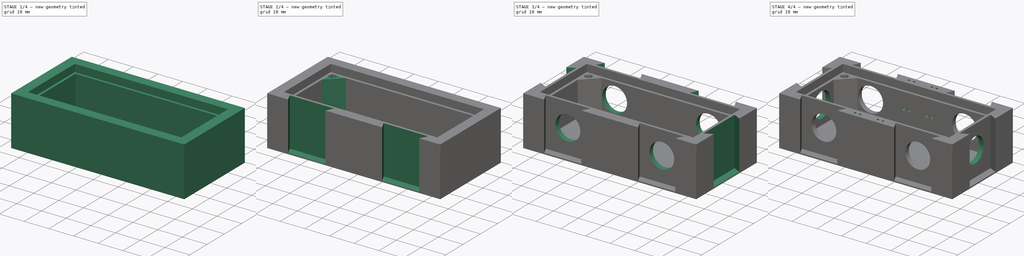
[diagram: build sequence overview — one tinted view per stage of 4, left to right]
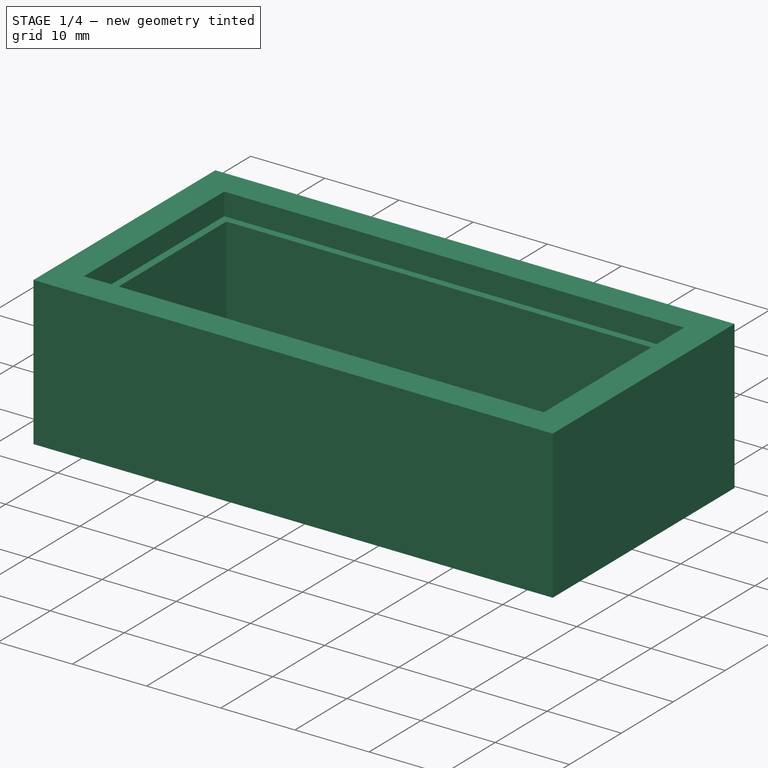
[diagram: stage 1 of 4 — iso view after this stage's code; geometry added in this stage tinted green]
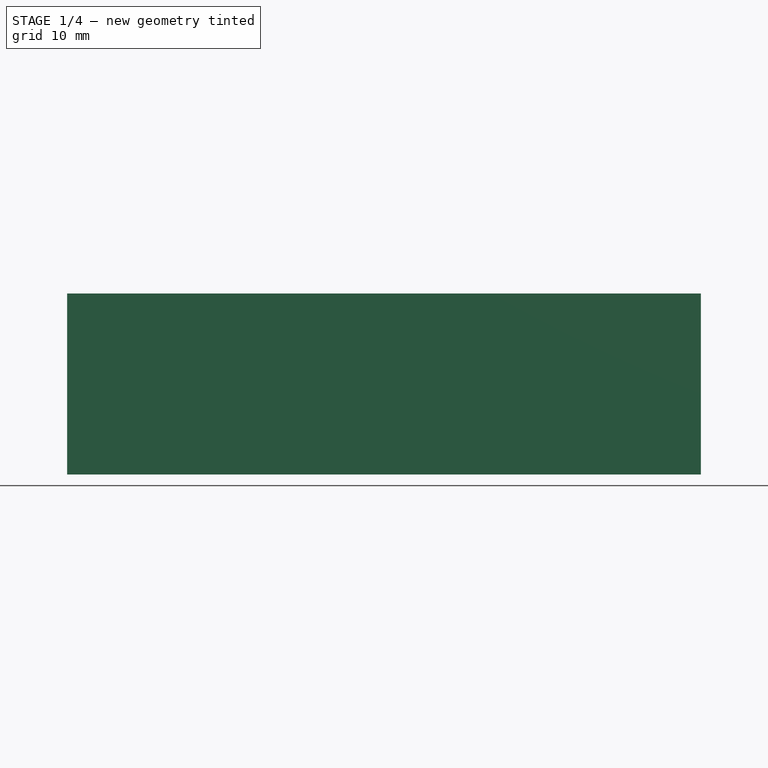
[diagram: stage 1 of 4 — front view after this stage's code; geometry added in this stage tinted green]
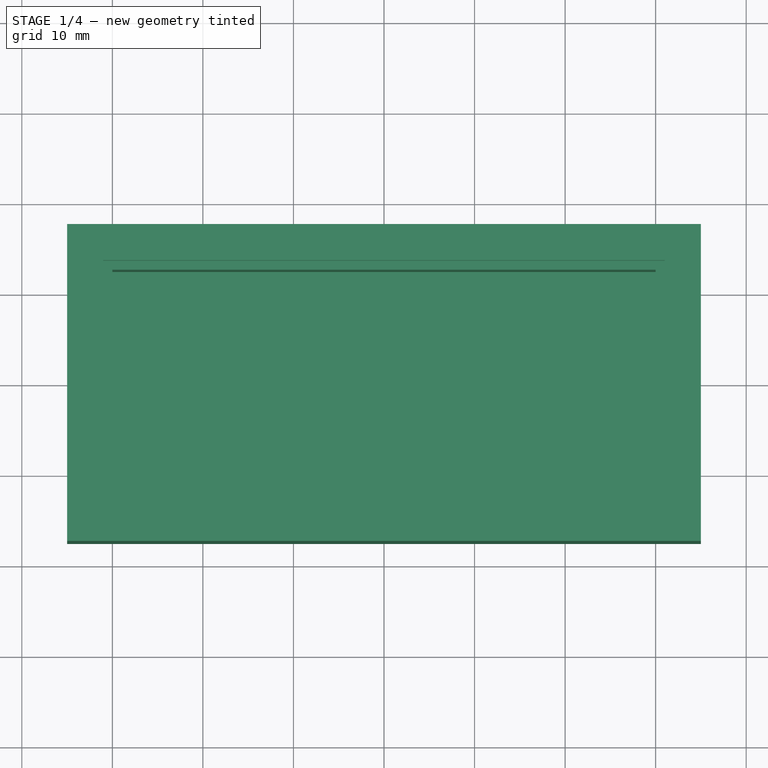
[diagram: stage 1 of 4 — top view after this stage's code; geometry added in this stage tinted green]
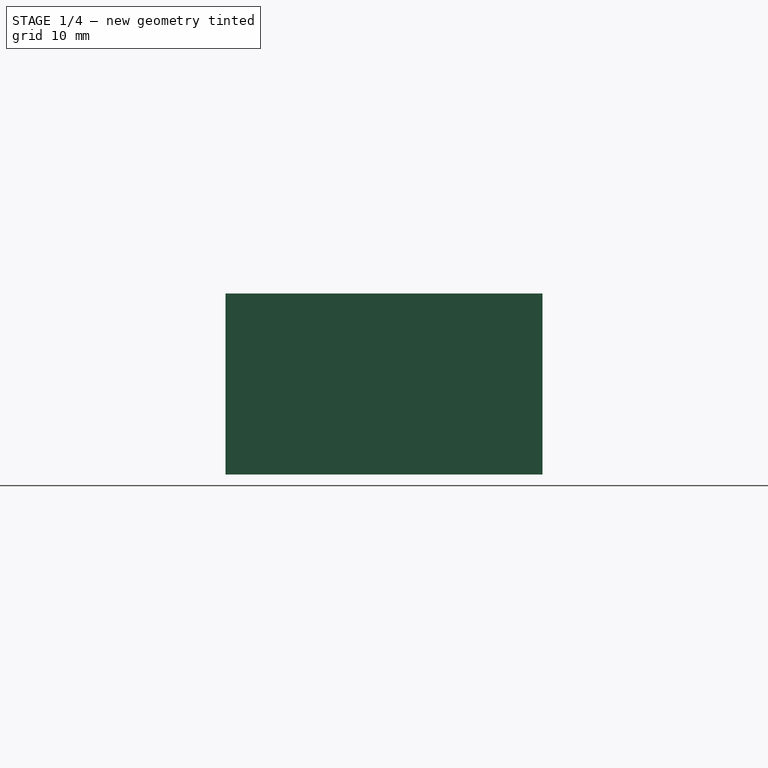
[diagram: stage 1 of 4 — right view after this stage's code; geometry added in this stage tinted green]
FCSTD DOCUMENT  (FreeCAD 0.18R4 (GitTag))
Label: 6xGateway
License: All rights reserved
LicenseURL: http://en.wikipedia.org/wiki/All_rights_reserved
objects: Sketcher::SketchObject×10, PartDesign::Pocket×7, PartDesign::Mirrored×3, PartDesign::Pad×2, PartDesign::Groove×1, PartDesign::Body×1
note: 34 computed .brp shape members not serialized (recipe doc carries the construction recipe); baked Part::Feature solids carry a one-line shape summary decoded from their .brp

FEATURE [Sketcher::SketchObject] Sketch
  MapMode = 5
  Support = -> [XY_Plane]
  sketch-geometry (4):
    g0: LineSegment StartX=-35 StartY=17.5 StartZ=0 EndX=35 EndY=17.5 EndZ=0
    g1: LineSegment StartX=35 StartY=17.5 StartZ=0 EndX=35 EndY=-17.5 EndZ=0
    g2: LineSegment StartX=35 StartY=-17.5 StartZ=0 EndX=-35 EndY=-17.5 EndZ=0
    g3: LineSegment StartX=-35 StartY=-17.5 StartZ=0 EndX=-35 EndY=17.5 EndZ=0
  constraints (10):
    c: Coincident(g0,g1)
    c: Coincident(g1,g2)
    c: Coincident(g2,g3)
    c: Coincident(g3,g0)
    c: Horizontal(g2)
    c: Vertical(g1)
    c: DistanceX(g2,g2) = 70
    c: DistanceY(g1,g1) = 35
    c: Symmetric(g0,g2,g-1)
    c: Symmetric(g0,g0,g-2)
FEATURE [PartDesign::Pad] Pad  label="Case"
  Length = 20
  Length2 = 100
  Profile = -> Sketch
  Type = 0
FEATURE [Sketcher::SketchObject] Sketch001
  MapMode = 5
  Placement = pos=(0,0,20) rot=(0,0,1;0rad)
  Support = -> [Pad]
  sketch-geometry (4):
    g0: LineSegment StartX=-31 StartY=13.5 StartZ=0 EndX=31 EndY=13.5 EndZ=0
    g1: LineSegment StartX=31 StartY=13.5 StartZ=0 EndX=31 EndY=-13.5 EndZ=0
    g2: LineSegment StartX=31 StartY=-13.5 StartZ=0 EndX=-31 EndY=-13.5 EndZ=0
    g3: LineSegment StartX=-31 StartY=-13.5 StartZ=0 EndX=-31 EndY=13.5 EndZ=0
  constraints (10):
    c: Coincident(g0,g1)
    c: Coincident(g1,g2)
    c: Coincident(g2,g3)
    c: Coincident(g3,g0)
    c: Horizontal(g2)
    c: Vertical(g1)
    c: DistanceX(g2,g2) = 62
    c: DistanceY(g1,g1) = 27
    c: Symmetric(g2,g0,g-1)
    c: Symmetric(g0,g0,g-2)
FEATURE [PartDesign::Pocket] Pocket  label="Plexi-Cutout"
  BaseFeature = -> Pad
  Length = 3
  Length2 = 100
  Profile = -> Sketch001
  Type = 0
FEATURE [Sketcher::SketchObject] Sketch002
  MapMode = 5
  Placement = pos=(0,0,17) rot=(0,0,1;0rad)
  Support = -> [Pocket]
  sketch-geometry (4):
    g0: LineSegment StartX=-30 StartY=12.5 StartZ=0 EndX=30 EndY=12.5 EndZ=0
    g1: LineSegment StartX=30 StartY=12.5 StartZ=0 EndX=30 EndY=-12.5 EndZ=0
    g2: LineSegment StartX=30 StartY=-12.5 StartZ=0 EndX=-30 EndY=-12.5 EndZ=0
    g3: LineSegment StartX=-30 StartY=-12.5 StartZ=0 EndX=-30 EndY=12.5 EndZ=0
  constraints (10):
    c: Coincident(g0,g1)
    c: Coincident(g1,g2)
    c: Coincident(g2,g3)
    c: Coincident(g3,g0)
    c: Horizontal(g2)
    c: Vertical(g1)
    c: DistanceX(g2,g2) = 60
    c: DistanceY(g1,g1) = 25
    c: Symmetric(g0,g0,g-2)
    c: Symmetric(g2,g0,g-1)
FEATURE [PartDesign::Pocket] Pocket001
  BaseFeature = -> Pocket
  Length = 14
  Length2 = 100
  Profile = -> Sketch002
  Type = 0
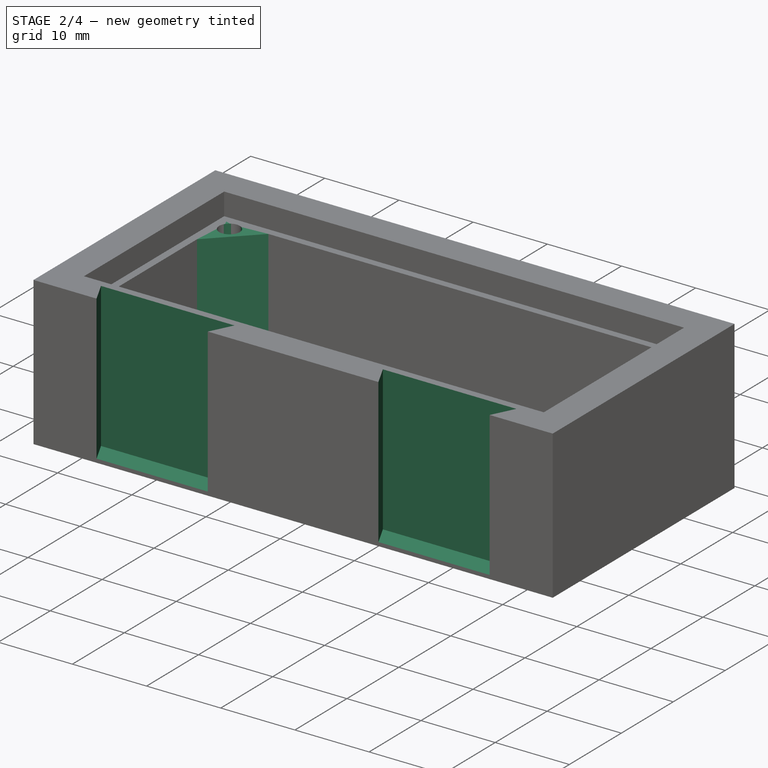
[diagram: stage 2 of 4 — iso view after this stage's code; geometry added in this stage tinted green]
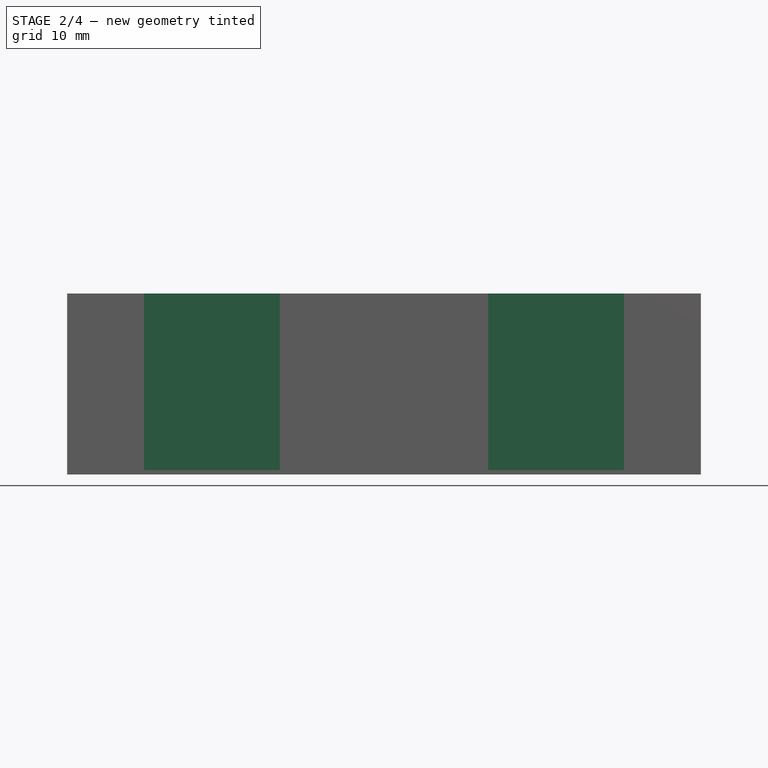
[diagram: stage 2 of 4 — front view after this stage's code; geometry added in this stage tinted green]
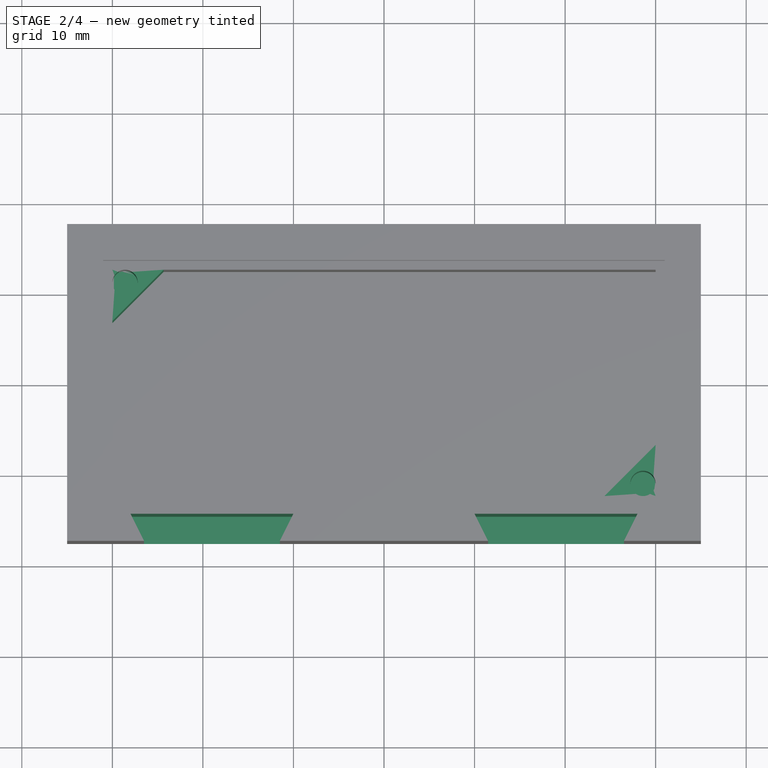
[diagram: stage 2 of 4 — top view after this stage's code; geometry added in this stage tinted green]
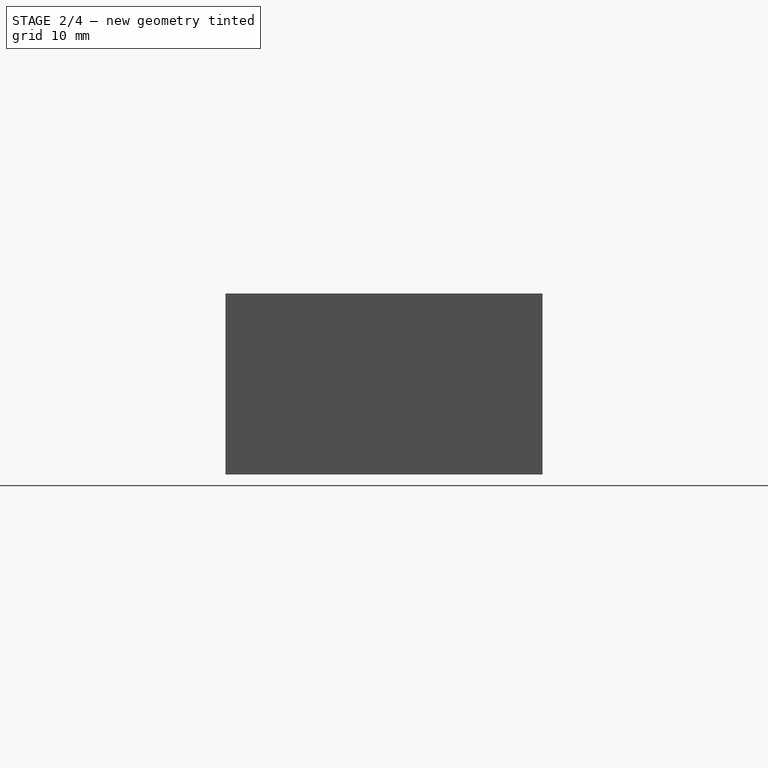
[diagram: stage 2 of 4 — right view after this stage's code; geometry added in this stage tinted green]
FEATURE [Sketcher::SketchObject] Sketch003
  ExternalGeometry = -> [Pocket001]
  MapMode = 5
  Placement = pos=(0,0,3) rot=(0,0,1;0rad)
  Support = -> [Pocket001]
  sketch-geometry (6):
    g0: LineSegment StartX=-30 StartY=12.5 StartZ=0 EndX=-30 EndY=6.84315 EndZ=0
    g1: LineSegment StartX=-30 StartY=6.84315 StartZ=0 EndX=-24.3431 EndY=12.5 EndZ=0
    g2: LineSegment StartX=-24.3431 StartY=12.5 StartZ=0 EndX=-30 EndY=12.5 EndZ=0
    g3: LineSegment StartX=24.3431 StartY=-12.5 StartZ=0 EndX=30 EndY=-12.5 EndZ=0
    g4: LineSegment StartX=30 StartY=-12.5 StartZ=0 EndX=30 EndY=-6.84315 EndZ=0
    g5: LineSegment StartX=30 StartY=-6.84315 StartZ=0 EndX=24.3431 EndY=-12.5 EndZ=0
  constraints (16):
    c: Coincident(g0,g1)
    c: Coincident(g1,g2)
    c: Coincident(g2,g0)
    c: Distance(g1) = 8
    c: Coincident(g0,g-3)
    c: PointOnObject(g0,g-3)
    c: Coincident(g3,g4)
    c: Coincident(g4,g5)
    c: Coincident(g5,g3)
    c: Perpendicular(g4,g3)
    c: Perpendicular(g2,g0)
    c: Equal(g0,g2)
    c: Coincident(g3,g-4)
    c: Distance(g5) = 8
    c: PointOnObject(g4,g-4)
    c: Equal(g3,g4)
FEATURE [PartDesign::Pad] Pad001  label="Borehole_Support"
  BaseFeature = -> Pocket001
  Length = 14
  Length2 = 100
  Profile = -> Sketch003
  Type = 0
FEATURE [Sketcher::SketchObject] Sketch004
  ExternalGeometry = -> [Pad001]
  MapMode = 5
  Placement = pos=(0,0,17) rot=(0,0,1;0rad)
  Support = -> [Pad001]
  sketch-geometry (2):
    g0: Circle CenterX=-28.6 CenterY=11.1 CenterZ=0 NormalX=0 NormalY=0 NormalZ=1 AngleXU=0 Radius=1.4
    g1: Circle CenterX=28.6 CenterY=-11.1 CenterZ=0 NormalX=0 NormalY=0 NormalZ=1 AngleXU=0 Radius=1.4
  constraints (6):
    c: Radius(g0) = 1.4
    c: Radius(g1) = 1.4
    c: Tangent(g0,g-7)
    c: Tangent(g0,g-8)
    c: Tangent(g1,g-10)
    c: Tangent(g-9,g1)
FEATURE [PartDesign::Pocket] Pocket002  label="Boreholes"
  BaseFeature = -> Pad001
  Length = 8
  Length2 = 100
  Profile = -> Sketch004
  Type = 0
FEATURE [Sketcher::SketchObject] Sketch009
  MapMode = 5
  Placement = pos=(0,0,20) rot=(0,0,1;0rad)
  Support = -> [Pocket002]
  sketch-geometry (8):
    g0: LineSegment StartX=-28 StartY=-14.5 StartZ=0 EndX=-10 EndY=-14.5 EndZ=0
    g1: LineSegment StartX=-10 StartY=-14.5 StartZ=0 EndX=-11.5 EndY=-17.5 EndZ=0
    g2: LineSegment StartX=-11.5 StartY=-17.5 StartZ=0 EndX=-26.5 EndY=-17.5 EndZ=0
    g3: LineSegment StartX=-26.5 StartY=-17.5 StartZ=0 EndX=-28 EndY=-14.5 EndZ=0
    g4: LineSegment StartX=10 StartY=-14.5 StartZ=0 EndX=28 EndY=-14.5 EndZ=0
    g5: LineSegment StartX=28 StartY=-14.5 StartZ=0 EndX=26.5 EndY=-17.5 EndZ=0
    g6: LineSegment StartX=26.5 StartY=-17.5 StartZ=0 EndX=11.5 EndY=-17.5 EndZ=0
    g7: LineSegment StartX=11.5 StartY=-17.5 StartZ=0 EndX=10 EndY=-14.5 EndZ=0
  constraints (24):
    c: Coincident(g0,g1)
    c: Coincident(g1,g2)
    c: Coincident(g2,g3)
    c: Coincident(g3,g0)
    c: Horizontal(g2)
    c: DistanceX(g2,g2) = 15
    c: DistanceX(g0,g0) = 18
    c: Equal(g3,g1)
    c: DistanceY(g2,g0) = 3
    c: DistanceY(g1,g-1) = 17.5
    c: Horizontal(g0)
    c: DistanceX(g0,g-1) = 10
    c: Horizontal(g4)
    c: Coincident(g4,g5)
    c: Coincident(g5,g6)
    c: Horizontal(g6)
    c: Coincident(g6,g7)
    c: Coincident(g7,g4)
    c: Equal(g7,g5)
    c: Equal(g4,g0)
    c: Equal(g6,g2)
    c: DistanceY(g6,g4) = 3
    c: DistanceX(g-1,g4) = 10
    c: DistanceY(g6,g-1) = 17.5
FEATURE [PartDesign::Pocket] Pocket003  label="ConnectorCutout"
  BaseFeature = -> Pocket002
  Length = 19.5
  Length2 = 100
  Profile = -> Sketch009
  Type = 0
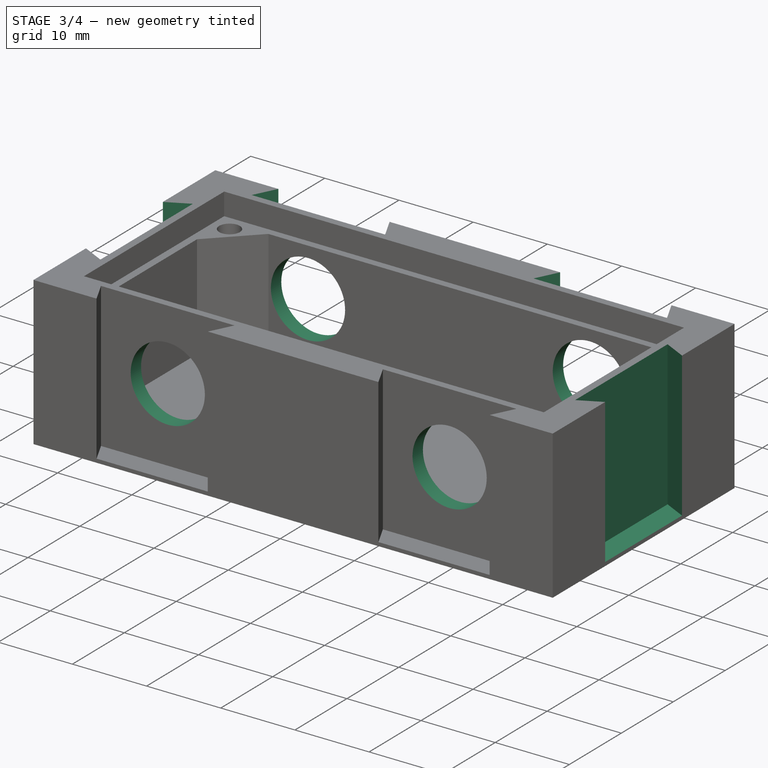
[diagram: stage 3 of 4 — iso view after this stage's code; geometry added in this stage tinted green]
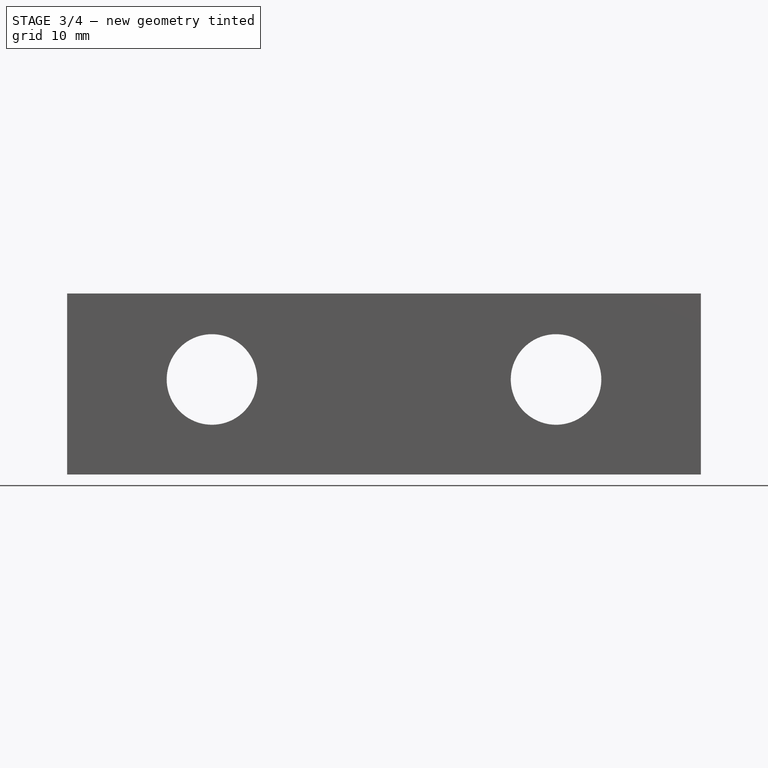
[diagram: stage 3 of 4 — front view after this stage's code; geometry added in this stage tinted green]
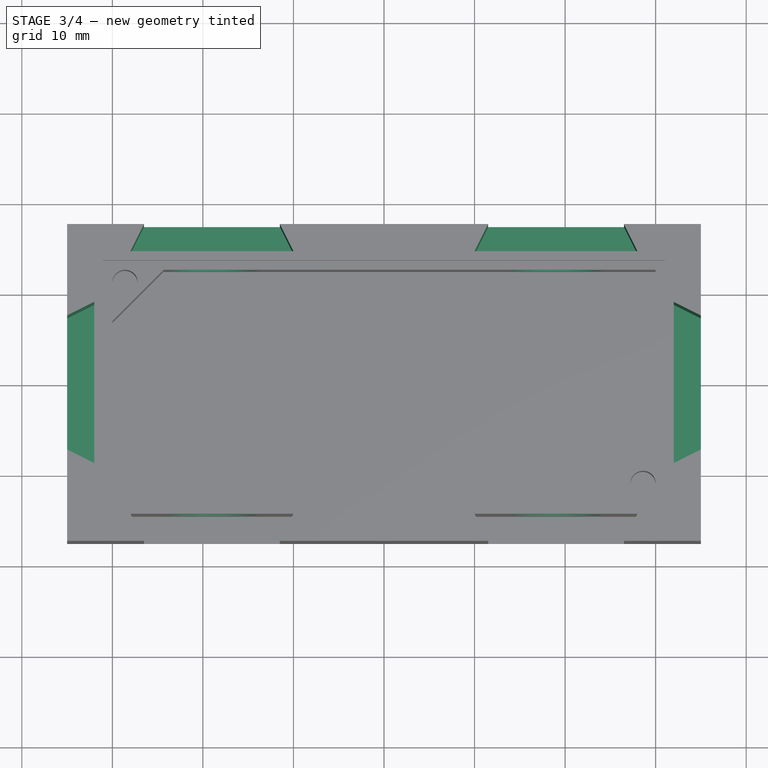
[diagram: stage 3 of 4 — top view after this stage's code; geometry added in this stage tinted green]
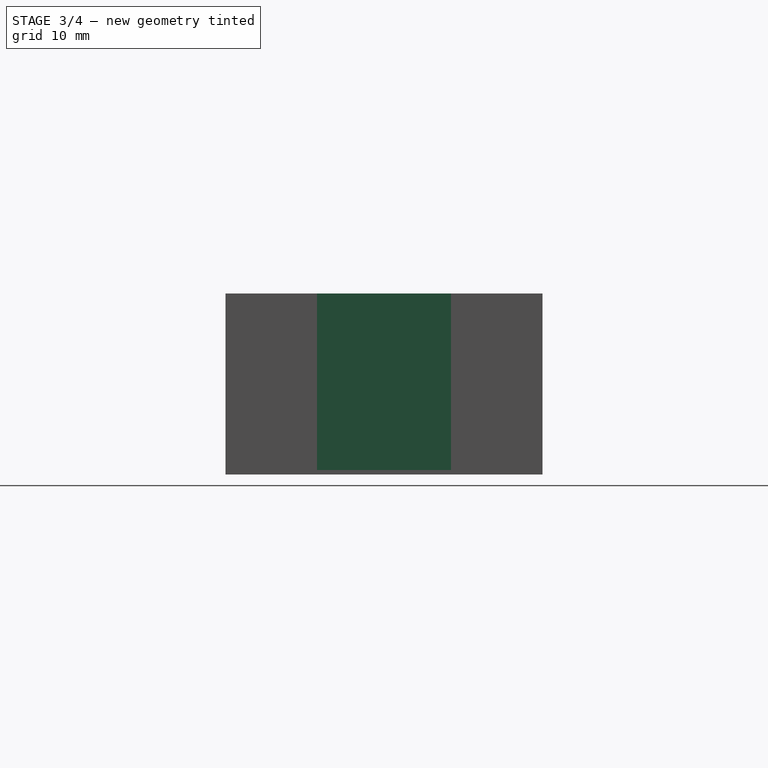
[diagram: stage 3 of 4 — right view after this stage's code; geometry added in this stage tinted green]
FEATURE [PartDesign::Mirrored] Mirrored
  BaseFeature = -> Pocket003
  MirrorPlane = -> XZ_Plane
  Originals = -> [Pocket003]
FEATURE [Sketcher::SketchObject] Sketch010
  MapMode = 5
  Placement = pos=(0,-14.5,0) rot=(1,0,0;1.5708rad)
  Support = -> [Mirrored]
  sketch-geometry (2):
    g0: Circle CenterX=-19 CenterY=10.5 CenterZ=0 NormalX=0 NormalY=0 NormalZ=1 AngleXU=0 Radius=5
    g1: Circle CenterX=19 CenterY=10.5 CenterZ=0 NormalX=0 NormalY=0 NormalZ=1 AngleXU=0 Radius=5
  constraints (6):
    c: Radius(g1) = 5
    c: Equal(g0,g1)
    c: Horizontal(g1,g0)
    c: DistanceY(g1) = 10.5
    c: DistanceX(g1) = 19
    c: DistanceX(g0) = -19
FEATURE [PartDesign::Pocket] Pocket004  label="holes"
  BaseFeature = -> Mirrored
  Length = 5
  Length2 = 100
  Profile = -> Sketch010
  Type = 1
FEATURE [Sketcher::SketchObject] Sketch011
  MapMode = 5
  Placement = pos=(0,0,20) rot=(0,0,1;0rad)
  Support = -> [Pocket004]
  sketch-geometry (4):
    g0: LineSegment StartX=-35 StartY=7.4 StartZ=0 EndX=-32 EndY=8.9 EndZ=0
    g1: LineSegment StartX=-32 StartY=8.9 StartZ=0 EndX=-32 EndY=-8.9 EndZ=0
    g2: LineSegment StartX=-32 StartY=-8.9 StartZ=0 EndX=-35 EndY=-7.4 EndZ=0
    g3: LineSegment StartX=-35 StartY=-7.4 StartZ=0 EndX=-35 EndY=7.4 EndZ=0
  constraints (11):
    c: Coincident(g0,g1)
    c: Coincident(g1,g2)
    c: Coincident(g2,g3)
    c: Coincident(g3,g0)
    c: Vertical(g3)
    c: DistanceY(g1,g1) = 17.8
    c: DistanceY(g3,g3) = 14.8
    c: Equal(g2,g0)
    c: DistanceX(g0,g0) = 3
    c: Symmetric(g0,g1,g-1)
    c: DistanceX(g2) = -35
FEATURE [PartDesign::Pocket] Pocket005  label="connector"
  BaseFeature = -> Pocket004
  Length = 19.5
  Length2 = 100
  Profile = -> Sketch011
  Type = 0
FEATURE [PartDesign::Mirrored] Mirrored001
  BaseFeature = -> Pocket005
  MirrorPlane = -> YZ_Plane
  Originals = -> [Pocket005]
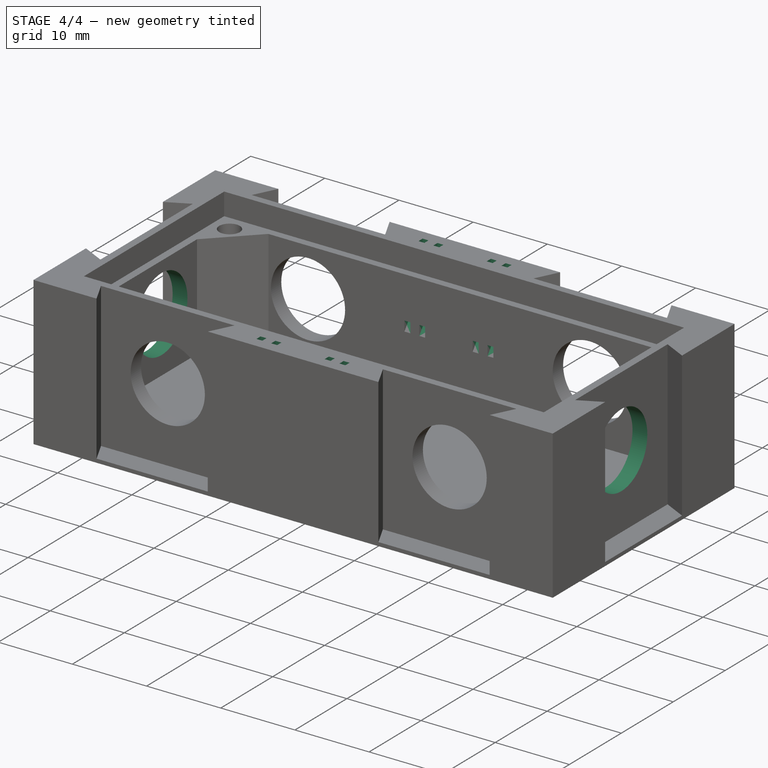
[diagram: stage 4 of 4 — iso view after this stage's code; geometry added in this stage tinted green]
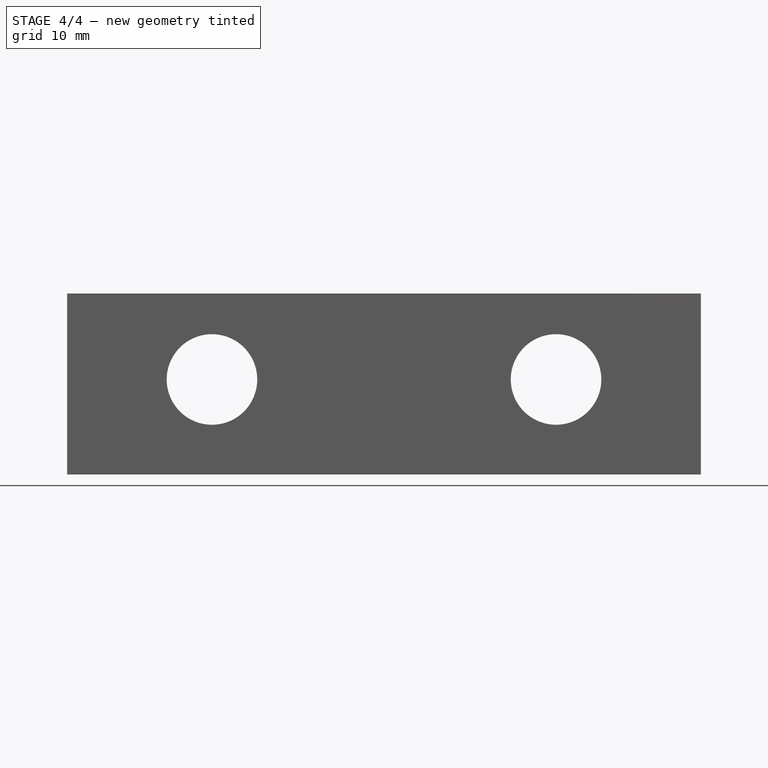
[diagram: stage 4 of 4 — front view after this stage's code; geometry added in this stage tinted green]
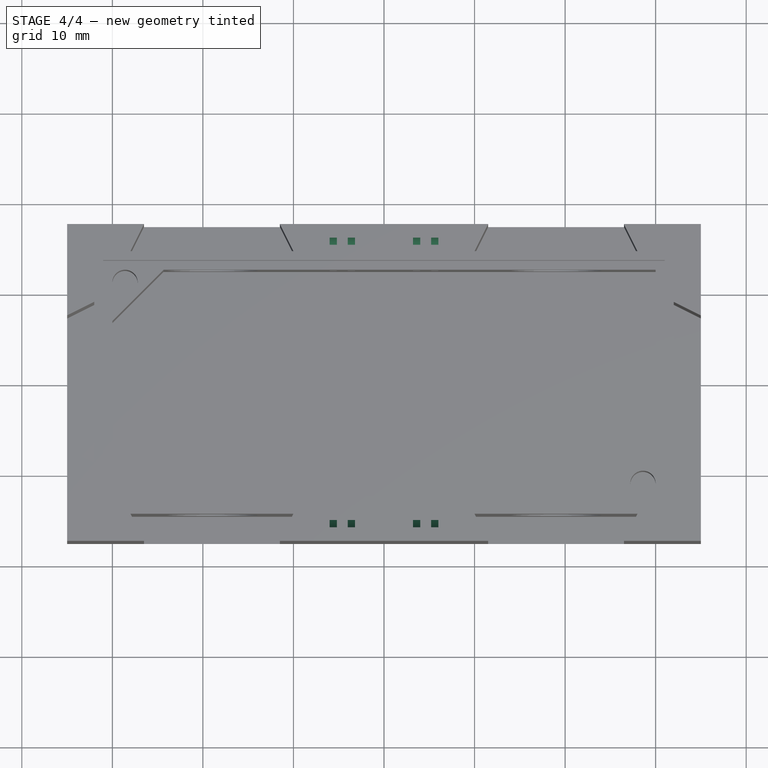
[diagram: stage 4 of 4 — top view after this stage's code; geometry added in this stage tinted green]
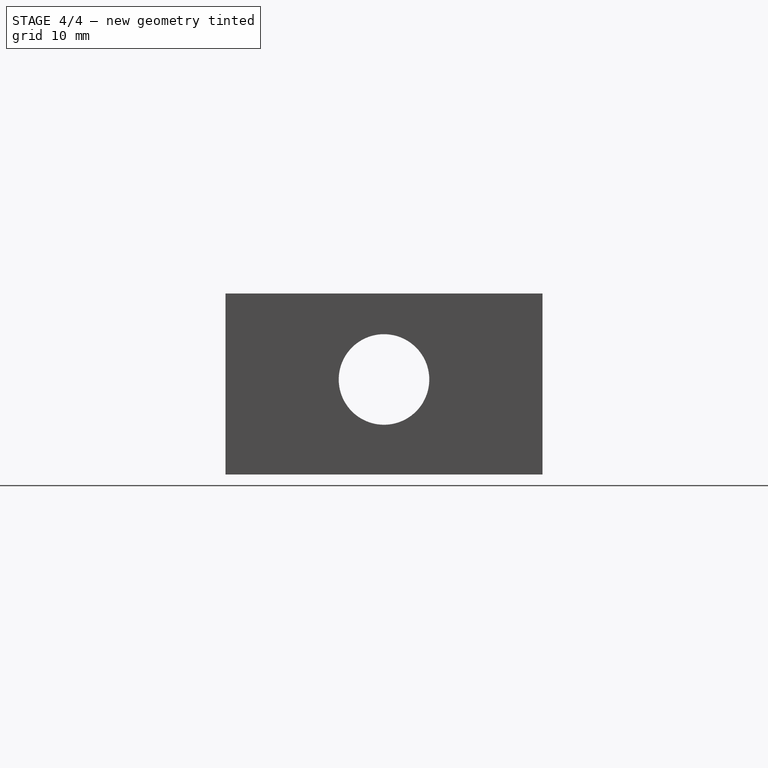
[diagram: stage 4 of 4 — right view after this stage's code; geometry added in this stage tinted green]
FEATURE [Sketcher::SketchObject] Sketch012
  MapMode = 5
  Placement = pos=(-32,0,0) rot=(0.57735,-0.57735,-0.57735;2.0944rad)
  Support = -> [Mirrored001]
  sketch-geometry (1):
    g0: Circle CenterX=0 CenterY=10.5 CenterZ=0 NormalX=0 NormalY=0 NormalZ=1 AngleXU=0 Radius=5
  constraints (3):
    c: Radius(g0) = 5
    c: PointOnObject(g0,g-2)
    c: DistanceY(g-1,g0) = 10.5
FEATURE [PartDesign::Pocket] Pocket006  label="hole"
  BaseFeature = -> Mirrored001
  Length = 5
  Length2 = 100
  Profile = -> Sketch012
  Type = 1
FEATURE [Sketcher::SketchObject] Sketch016
  MapMode = 5
  Placement = pos=(0,0,20) rot=(0,0,1;0rad)
  sketch-geometry (8):
    g0: LineSegment StartX=-6 StartY=16 StartZ=0 EndX=-5.2 EndY=16 EndZ=0
    g1: LineSegment StartX=-5.2 StartY=16 StartZ=0 EndX=-5.2 EndY=15.2 EndZ=0
    g2: LineSegment StartX=-5.2 StartY=15.2 StartZ=0 EndX=-6 EndY=15.2 EndZ=0
    g3: LineSegment StartX=-6 StartY=15.2 StartZ=0 EndX=-6 EndY=16 EndZ=0
    g4: LineSegment StartX=-3.2 StartY=16 StartZ=0 EndX=-4 EndY=16 EndZ=0
    g5: LineSegment StartX=-4 StartY=16 StartZ=0 EndX=-4 EndY=15.2 EndZ=0
    g6: LineSegment StartX=-4 StartY=15.2 StartZ=0 EndX=-3.2 EndY=15.2 EndZ=0
    g7: LineSegment StartX=-3.2 StartY=15.2 StartZ=0 EndX=-3.2 EndY=16 EndZ=0
  constraints (24):
    c: Coincident(g0,g1)
    c: Coincident(g1,g2)
    c: Coincident(g2,g3)
    c: Coincident(g3,g0)
    c: Horizontal(g0)
    c: Horizontal(g2)
    c: Vertical(g1)
    c: Vertical(g3)
    c: Coincident(g4,g5)
    c: Coincident(g5,g6)
    c: Coincident(g6,g7)
    c: Coincident(g7,g4)
    c: Horizontal(g4)
    c: Horizontal(g6)
    c: Vertical(g5)
    c: Vertical(g7)
    c: DistanceX(g0,g0) = 0.8
    c: DistanceY(g1,g1) = 0.8
    c: Equal(g4,g0)
    c: Equal(g3,g7)
    c: DistanceX(g0,g4) = 2
    c: Horizontal(g4,g0)
    c: DistanceX(g5) = -4
    c: DistanceY(g4) = 16
FEATURE [PartDesign::Groove] Groove
  Angle = 360
  Axis = (1,0,0)
  Base = (0,0,20)
  BaseFeature = -> Pocket006
  Profile = -> Sketch016
  ReferenceAxis = -> Sketch016 [H_Axis]
  Reversed = true
FEATURE [PartDesign::Mirrored] Mirrored002
  BaseFeature = -> Groove
  MirrorPlane = -> Sketch016 [V_Axis]
  Originals = -> [Groove]
FEATURE [PartDesign::Body] Body
  Group = -> [Sketch,Pad,Sketch001,Pocket,Sketch002,Pocket001,Sketch003,Pad001,Sketch004,Pocket002,Sketch009,Pocket003,Mirrored,Sketch010,Pocket004,Sketch011,Pocket005,Mirrored001,Sketch012,Pocket006,Sketch016,Groove,Mirrored002]
  Origin = -> Origin
  Tip = -> Mirrored002
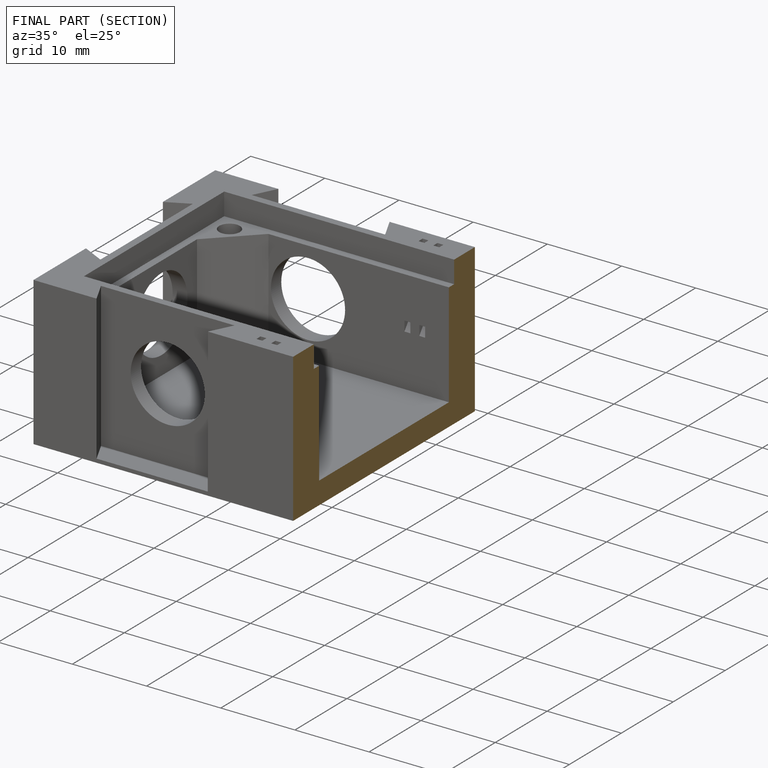
[diagram: finished part — half-section view (interior)]
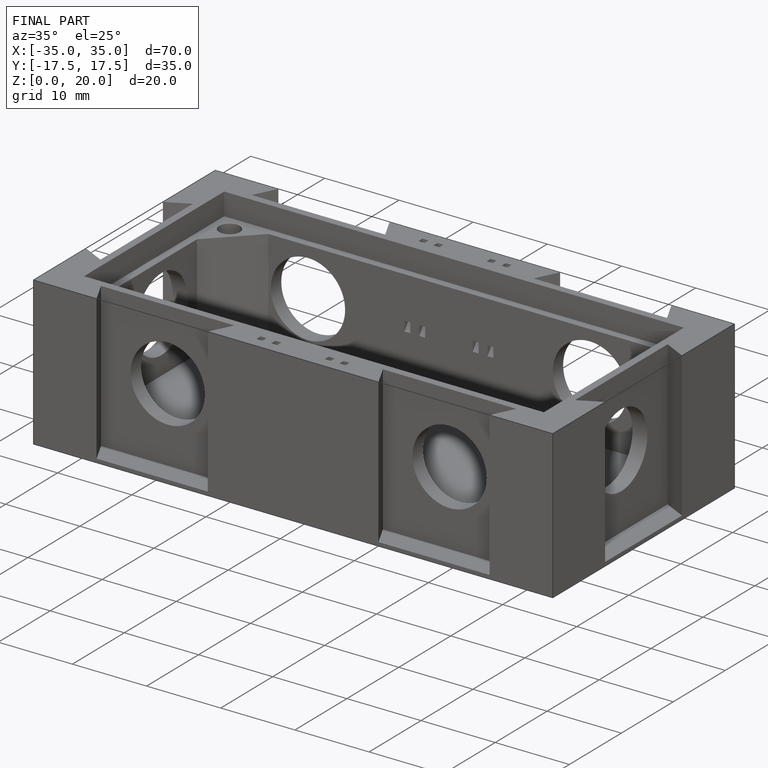
[diagram: finished part — iso view with bounding-box wireframe]
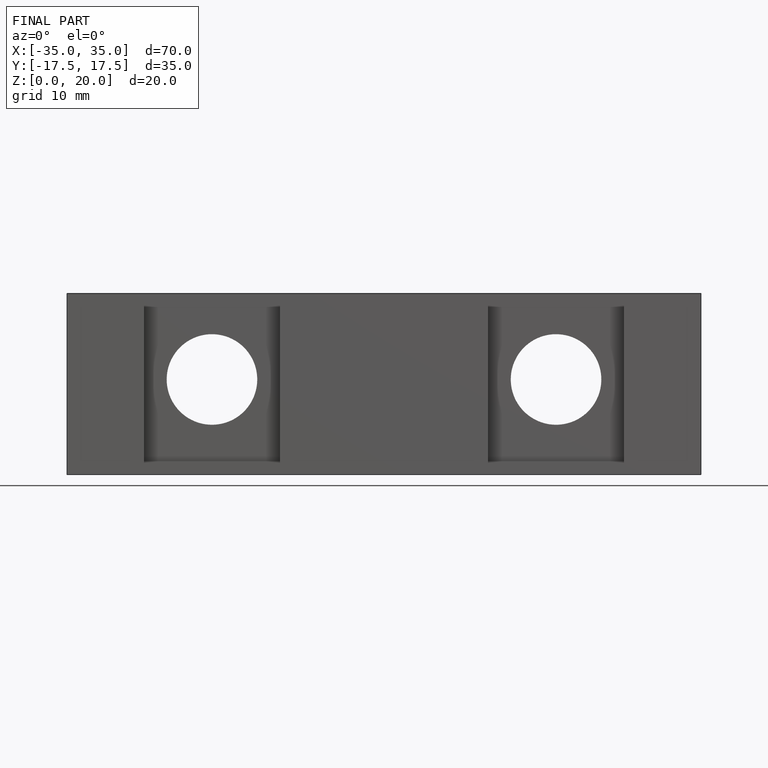
[diagram: finished part — front view with bounding-box wireframe]
